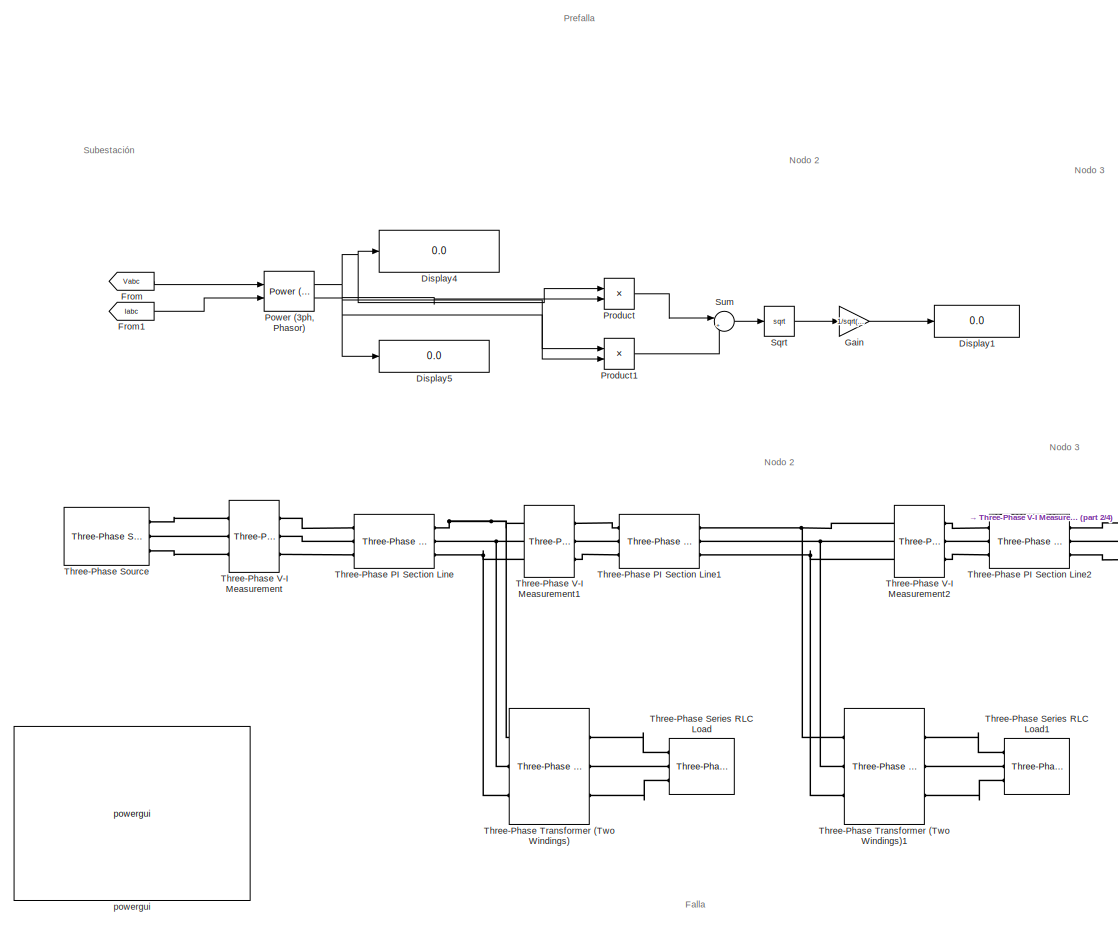
[diagram: root canvas - part 1/4, top left region]
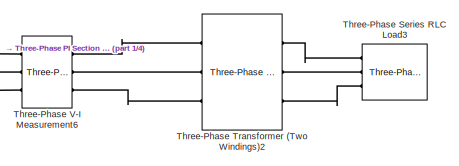
[diagram: root canvas - part 2/4, top right region]
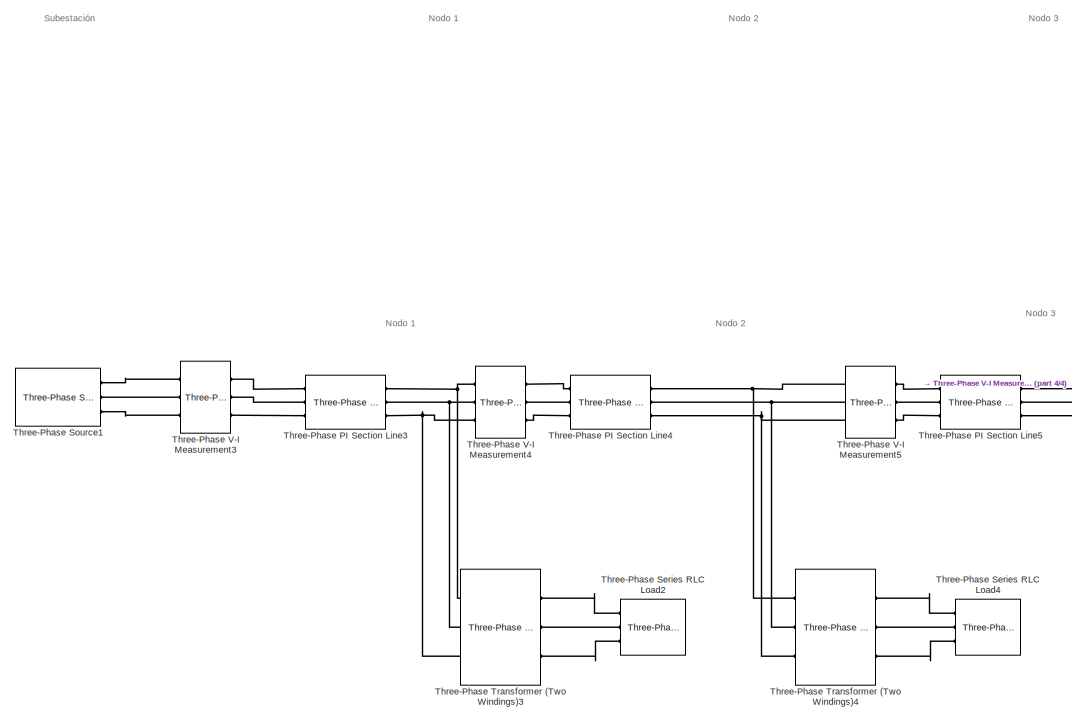
[diagram: root canvas - part 3/4, bottom left region]
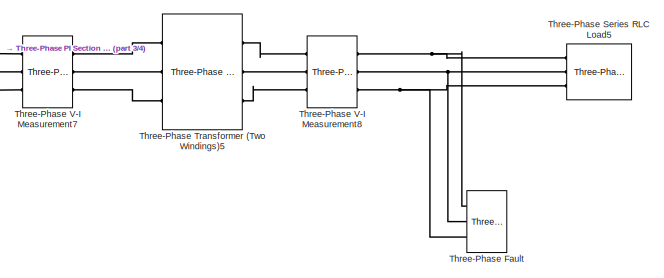
[diagram: root canvas - part 4/4, bottom right region]
MODEL slx_06a9c17df3db
KIND model
CONFIG AbsTol = auto
CONFIG FixedStep = auto
CONFIG MaxStep = auto
CONFIG MinStep = auto
CONFIG RelTol = 1e-3
CONFIG SampleTimeConstraint = Unconstrained
CONFIG Solver = ode45
CONFIG SolverMode = Auto
CONFIG SolverName = ode45
CONFIG StartTime = 0.0
CONFIG StopTime = 0.32
BLOCK [Display] Display1
  Ports = [1]
BLOCK [Display] Display4
  Decimation = 1
  Ports = [1]
BLOCK [Display] Display5
  Decimation = 1
  Ports = [1]
BLOCK [From] From
  GotoTag = Vabc
  TagVisibility = global
BLOCK [From] From1
  GotoTag = Iabc
  TagVisibility = global
BLOCK [Gain] Gain
  Gain = 1/sqrt(3)
  OutDataTypeStr = Inherit: Inherit via internal rule
  ParamDataTypeStr = Inherit: Inherit via internal rule
  SaturateOnIntegerOverflow = off
BLOCK [Reference] Power (3ph, Phasor)  REF=powerlib_meascontrol/Measurements/Power
(3ph, Phasor)
  Ports = [2, 2]
  SourceBlock = powerlib_meascontrol/Measurements/Power\n(3ph, Phasor)
  SourceType = Power (3ph, Phasor)
BLOCK [Product] Product
  InputSameDT = off
  OutDataTypeStr = Inherit: Inherit via internal rule
  Ports = [2, 1]
  RndMeth = Floor
  SaturateOnIntegerOverflow = off
BLOCK [Product] Product1
  InputSameDT = off
  OutDataTypeStr = Inherit: Inherit via internal rule
  Ports = [2, 1]
  RndMeth = Floor
  SaturateOnIntegerOverflow = off
BLOCK [Sqrt] Sqrt
BLOCK [Sum] Sum
  IconShape = round
  InputSameDT = off
  Inputs = |++
  OutDataTypeStr = Inherit: Inherit via internal rule
  Ports = [2, 1]
  SaturateOnIntegerOverflow = off
BLOCK [Reference] Three-Phase Fault  REF=powerlib/Elements/Three-Phase Fault
  External = off
  FaultA = on
  FaultB = off
  FaultC = off
  FaultResistance = 0.001
  GroundFault = on
  GroundResistance = 1
  InitialStates = 0
  Measurements = Fault currents
  Ports = [0, 0, 0, 0, 0, 3]
  SnubberCapacitance = inf
  SnubberResistance = 1e6
  SourceBlock = powerlib/Elements/Three-Phase Fault
  SourceType = Three-Phase Fault
  SwitchStatus = NaN
  SwitchTimes = [0.05  0.30]
BLOCK [Reference] Three-Phase PI Section Line  REF=powerlib/Elements/Three-Phase
PI Section Line
  AttributesFormatString = \n
  Capacitances = [12.74e-9 7.751e-9]
  Frequency = 60
  Inductances = [ 0.9337e-3  4.1264e-3]
  LConnTagsString = a|b|c
  Length = 2
  Ports = [0, 0, 0, 0, 0, 3, 3]
  RConnTagsString = A|B|C
  Resistances = [ 0.01273 0.3864]
  SourceBlock = powerlib/Elements/Three-Phase\nPI Section Line
  SourceType = Three-Phase PI Section Line
BLOCK [Reference] Three-Phase PI Section Line1  REF=powerlib/Elements/Three-Phase
PI Section Line
  AttributesFormatString = \n
  Capacitances = [12.74e-9 7.751e-9]
  Frequency = 60
  Inductances = [ 0.9337e-3  4.1264e-3]
  LConnTagsString = a|b|c
  Length = 1
  Ports = [0, 0, 0, 0, 0, 3, 3]
  RConnTagsString = A|B|C
  Resistances = [ 0.01273 0.3864]
  SourceBlock = powerlib/Elements/Three-Phase\nPI Section Line
  SourceType = Three-Phase PI Section Line
BLOCK [Reference] Three-Phase PI Section Line2  REF=powerlib/Elements/Three-Phase
PI Section Line
  AttributesFormatString = \n
  Capacitances = [12.74e-9 7.751e-9]
  Frequency = 60
  Inductances = [ 0.9337e-3  4.1264e-3]
  LConnTagsString = a|b|c
  Length = 1.5
  Ports = [0, 0, 0, 0, 0, 3, 3]
  RConnTagsString = A|B|C
  Resistances = [ 0.01273 0.3864]
  SourceBlock = powerlib/Elements/Three-Phase\nPI Section Line
  SourceType = Three-Phase PI Section Line
BLOCK [Reference] Three-Phase PI Section Line3  REF=powerlib/Elements/Three-Phase
PI Section Line
  AttributesFormatString = \n
  Capacitances = [12.74e-9 7.751e-9]
  Frequency = 60
  Inductances = [ 0.9337e-3  4.1264e-3]
  LConnTagsString = a|b|c
  Length = 2
  Ports = [0, 0, 0, 0, 0, 3, 3]
  RConnTagsString = A|B|C
  Resistances = [ 0.01273 0.3864]
  SourceBlock = powerlib/Elements/Three-Phase\nPI Section Line
  SourceType = Three-Phase PI Section Line
BLOCK [Reference] Three-Phase PI Section Line4  REF=powerlib/Elements/Three-Phase
PI Section Line
  AttributesFormatString = \n
  Capacitances = [12.74e-9 7.751e-9]
  Frequency = 60
  Inductances = [ 0.9337e-3  4.1264e-3]
  LConnTagsString = a|b|c
  Length = 1
  Ports = [0, 0, 0, 0, 0, 3, 3]
  RConnTagsString = A|B|C
  Resistances = [ 0.01273 0.3864]
  SourceBlock = powerlib/Elements/Three-Phase\nPI Section Line
  SourceType = Three-Phase PI Section Line
BLOCK [Reference] Three-Phase PI Section Line5  REF=powerlib/Elements/Three-Phase
PI Section Line
  AttributesFormatString = \n
  Capacitances = [12.74e-9 7.751e-9]
  Frequency = 60
  Inductances = [ 0.9337e-3  4.1264e-3]
  LConnTagsString = a|b|c
  Length = 1.5
  Ports = [0, 0, 0, 0, 0, 3, 3]
  RConnTagsString = A|B|C
  Resistances = [ 0.01273 0.3864]
  SourceBlock = powerlib/Elements/Three-Phase\nPI Section Line
  SourceType = Three-Phase PI Section Line
BLOCK [Reference] Three-Phase Series RLC Load  REF=powerlib/Elements/Three-Phase
Series RLC Load
  ActivePower = 10e3
  AttributesFormatString = \n
  CapacitivePower = 100
  Configuration = Y (grounded)
  InductivePower = 100
  LConnTagsString = A|B|C
  LoadType = constant Z
  Measurements = None
  NominalFrequency = 60
  NominalVoltage = 13800
  Ports = [0, 0, 0, 0, 0, 3]
  SourceBlock = powerlib/Elements/Three-Phase\nSeries RLC Load
  SourceType = Three-Phase Series RLC Load
BLOCK [Reference] Three-Phase Series RLC Load1  REF=powerlib/Elements/Three-Phase
Series RLC Load
  ActivePower = 10e3
  AttributesFormatString = \n
  CapacitivePower = 100
  Configuration = Y (grounded)
  InductivePower = 100
  LConnTagsString = A|B|C
  LoadType = constant Z
  Measurements = None
  NominalFrequency = 60
  NominalVoltage = 13800
  Ports = [0, 0, 0, 0, 0, 3]
  SourceBlock = powerlib/Elements/Three-Phase\nSeries RLC Load
  SourceType = Three-Phase Series RLC Load
BLOCK [Reference] Three-Phase Series RLC Load2  REF=powerlib/Elements/Three-Phase
Series RLC Load
  ActivePower = 10e3
  AttributesFormatString = \n
  CapacitivePower = 100
  Configuration = Y (grounded)
  InductivePower = 100
  LConnTagsString = A|B|C
  LoadType = constant Z
  Measurements = None
  NominalFrequency = 60
  NominalVoltage = 13800
  Ports = [0, 0, 0, 0, 0, 3]
  SourceBlock = powerlib/Elements/Three-Phase\nSeries RLC Load
  SourceType = Three-Phase Series RLC Load
BLOCK [Reference] Three-Phase Series RLC Load3  REF=powerlib/Elements/Three-Phase
Series RLC Load
  ActivePower = 10e3
  AttributesFormatString = \n
  CapacitivePower = 100
  Configuration = Y (grounded)
  InductivePower = 100
  LConnTagsString = A|B|C
  LoadType = constant Z
  Measurements = None
  NominalFrequency = 60
  NominalVoltage = 13800
  Ports = [0, 0, 0, 0, 0, 3]
  SourceBlock = powerlib/Elements/Three-Phase\nSeries RLC Load
  SourceType = Three-Phase Series RLC Load
BLOCK [Reference] Three-Phase Series RLC Load4  REF=powerlib/Elements/Three-Phase
Series RLC Load
  ActivePower = 10e3
  AttributesFormatString = \n
  CapacitivePower = 100
  Configuration = Y (grounded)
  InductivePower = 100
  LConnTagsString = A|B|C
  LoadType = constant Z
  Measurements = None
  NominalFrequency = 60
  NominalVoltage = 13800
  Ports = [0, 0, 0, 0, 0, 3]
  SourceBlock = powerlib/Elements/Three-Phase\nSeries RLC Load
  SourceType = Three-Phase Series RLC Load
BLOCK [Reference] Three-Phase Series RLC Load5  REF=powerlib/Elements/Three-Phase
Series RLC Load
  ActivePower = 10e3
  AttributesFormatString = \n
  CapacitivePower = 100
  Configuration = Y (grounded)
  InductivePower = 100
  LConnTagsString = A|B|C
  LoadType = constant Z
  Measurements = None
  NominalFrequency = 60
  NominalVoltage = 13800
  Ports = [0, 0, 0, 0, 0, 3]
  SourceBlock = powerlib/Elements/Three-Phase\nSeries RLC Load
  SourceType = Three-Phase Series RLC Load
BLOCK [Reference] Three-Phase Source  REF=powerlib/Electrical
Sources/Three-Phase Source
  BaseVoltage = 115e3
  BusType = swing
  Frequency = 60
  Inductance = 16.58e-3
  InternalConnection = Yg
  PhaseAngle = 0
  Ports = [0, 0, 0, 0, 0, 0, 3]
  Pref = 0
  Qmax = inf
  Qmin = -inf
  Qref = 0
  Resistance = 0.8929
  ShortCircuitLevel = 100e6
  SourceBlock = powerlib/Electrical\nSources/Three-Phase Source
  SourceType = Three-Phase Source
  SpecifyImpedance = on
  Voltage = 115e3
  XRratio = 7
BLOCK [Reference] Three-Phase Source1  REF=powerlib/Electrical
Sources/Three-Phase Source
  BaseVoltage = 115e3
  BusType = swing
  Frequency = 60
  Inductance = 16.58e-3
  InternalConnection = Yg
  PhaseAngle = 0
  Ports = [0, 0, 0, 0, 0, 0, 3]
  Pref = 0
  Qmax = inf
  Qmin = -inf
  Qref = 0
  Resistance = 0.8929
  ShortCircuitLevel = 100e6
  SourceBlock = powerlib/Electrical\nSources/Three-Phase Source
  SourceType = Three-Phase Source
  SpecifyImpedance = on
  Voltage = 115e3
  XRratio = 7
BLOCK [Reference] Three-Phase Transformer (Two Windings)  REF=powerlib/Elements/Three-Phase
Transformer
(Two Windings)
  BreakLoop = off
  CoreType = Three single-phase transformers
  DataFile = 'hysteresis'
  DataType = off
  Hysteresis = off
  InitialFluxes = [ 0.8 , -0.8 , 0.7 ]
  L0 = 0.5
  Lm = 500
  Measurements = None
  MoreParameters = off
  NominalPower = [ 250e6 , 60 ]
  Ports = [0, 0, 0, 0, 0, 3, 3]
  Rm = 500
  Saturation = [ 0,0 ; 0.0024,1.2 ; 1.0,1.52 ]
  SetInitialFlux = off
  SetSaturation = off
  SourceBlock = powerlib/Elements/Three-Phase\nTransformer\n(Two Windings)
  SourceType = Three-Phase Transformer (Two Windings)
  TransfoNumber = 1
  UNITS = pu
  Winding1 = [ 115e3 , 0.002 , 0.08 ]
  Winding1Connection = Yg
  Winding2 = [ 13.8e3 , 0.002 , 0.08 ]
  Winding2Connection = Yg
BLOCK [Reference] Three-Phase Transformer (Two Windings)1  REF=powerlib/Elements/Three-Phase
Transformer
(Two Windings)
  BreakLoop = off
  CoreType = Three single-phase transformers
  DataFile = 'hysteresis'
  DataType = off
  Hysteresis = off
  InitialFluxes = [ 0.8 , -0.8 , 0.7 ]
  L0 = 0.5
  Lm = 500
  Measurements = None
  MoreParameters = off
  NominalPower = [ 150e6 , 60 ]
  Ports = [0, 0, 0, 0, 0, 3, 3]
  Rm = 500
  Saturation = [ 0,0 ; 0.0024,1.2 ; 1.0,1.52 ]
  SetInitialFlux = off
  SetSaturation = off
  SourceBlock = powerlib/Elements/Three-Phase\nTransformer\n(Two Windings)
  SourceType = Three-Phase Transformer (Two Windings)
  TransfoNumber = 1
  UNITS = pu
  Winding1 = [ 115e3 , 0.002 , 0.08 ]
  Winding1Connection = Yg
  Winding2 = [ 13.8e3 , 0.002 , 0.08 ]
  Winding2Connection = Yg
BLOCK [Reference] Three-Phase Transformer (Two Windings)2  REF=powerlib/Elements/Three-Phase
Transformer
(Two Windings)
  BreakLoop = off
  CoreType = Three single-phase transformers
  DataFile = 'hysteresis'
  DataType = off
  Hysteresis = off
  InitialFluxes = [ 0.8 , -0.8 , 0.7 ]
  L0 = 0.5
  Lm = 500
  Measurements = None
  MoreParameters = off
  NominalPower = [ 150e6 , 60 ]
  Ports = [0, 0, 0, 0, 0, 3, 3]
  Rm = 500
  Saturation = [ 0,0 ; 0.0024,1.2 ; 1.0,1.52 ]
  SetInitialFlux = off
  SetSaturation = off
  SourceBlock = powerlib/Elements/Three-Phase\nTransformer\n(Two Windings)
  SourceType = Three-Phase Transformer (Two Windings)
  TransfoNumber = 1
  UNITS = pu
  Winding1 = [ 115e3 , 0.002 , 0.08 ]
  Winding1Connection = Yg
  Winding2 = [ 13.8e3 , 0.002 , 0.08 ]
  Winding2Connection = Yg
BLOCK [Reference] Three-Phase Transformer (Two Windings)3  REF=powerlib/Elements/Three-Phase
Transformer
(Two Windings)
  BreakLoop = off
  CoreType = Three single-phase transformers
  DataFile = 'hysteresis'
  DataType = off
  Hysteresis = off
  InitialFluxes = [ 0.8 , -0.8 , 0.7 ]
  L0 = 0.5
  Lm = 500
  Measurements = None
  MoreParameters = off
  NominalPower = [ 250e6 , 60 ]
  Ports = [0, 0, 0, 0, 0, 3, 3]
  Rm = 500
  Saturation = [ 0,0 ; 0.0024,1.2 ; 1.0,1.52 ]
  SetInitialFlux = off
  SetSaturation = off
  SourceBlock = powerlib/Elements/Three-Phase\nTransformer\n(Two Windings)
  SourceType = Three-Phase Transformer (Two Windings)
  TransfoNumber = 1
  UNITS = pu
  Winding1 = [ 115e3 , 0.002 , 0.08 ]
  Winding1Connection = Yg
  Winding2 = [ 13.8e3 , 0.002 , 0.08 ]
  Winding2Connection = Yg
BLOCK [Reference] Three-Phase Transformer (Two Windings)4  REF=powerlib/Elements/Three-Phase
Transformer
(Two Windings)
  BreakLoop = off
  CoreType = Three single-phase transformers
  DataFile = 'hysteresis'
  DataType = off
  Hysteresis = off
  InitialFluxes = [ 0.8 , -0.8 , 0.7 ]
  L0 = 0.5
  Lm = 500
  Measurements = None
  MoreParameters = off
  NominalPower = [ 150e6 , 60 ]
  Ports = [0, 0, 0, 0, 0, 3, 3]
  Rm = 500
  Saturation = [ 0,0 ; 0.0024,1.2 ; 1.0,1.52 ]
  SetInitialFlux = off
  SetSaturation = off
  SourceBlock = powerlib/Elements/Three-Phase\nTransformer\n(Two Windings)
  SourceType = Three-Phase Transformer (Two Windings)
  TransfoNumber = 1
  UNITS = pu
  Winding1 = [ 115e3 , 0.002 , 0.08 ]
  Winding1Connection = Yg
  Winding2 = [ 13.8e3 , 0.002 , 0.08 ]
  Winding2Connection = Yg
BLOCK [Reference] Three-Phase Transformer (Two Windings)5  REF=powerlib/Elements/Three-Phase
Transformer
(Two Windings)
  BreakLoop = off
  CoreType = Three single-phase transformers
  DataFile = 'hysteresis'
  DataType = off
  Hysteresis = off
  InitialFluxes = [ 0.8 , -0.8 , 0.7 ]
  L0 = 0.5
  Lm = 500
  Measurements = None
  MoreParameters = off
  NominalPower = [ 150e6 , 60 ]
  Ports = [0, 0, 0, 0, 0, 3, 3]
  Rm = 500
  Saturation = [ 0,0 ; 0.0024,1.2 ; 1.0,1.52 ]
  SetInitialFlux = off
  SetSaturation = off
  SourceBlock = powerlib/Elements/Three-Phase\nTransformer\n(Two Windings)
  SourceType = Three-Phase Transformer (Two Windings)
  TransfoNumber = 1
  UNITS = pu
  Winding1 = [ 115e3 , 0.002 , 0.08 ]
  Winding1Connection = Yg
  Winding2 = [ 13.8e3 , 0.002 , 0.08 ]
  Winding2Connection = Yg
BLOCK [Reference] Three-Phase V-I Measurement  REF=powerlib/Measurements/Three-Phase
V-I Measurement
  CurrentMeasurement = yes
  Ipu = off
  LabelI = Iabc
  LabelV = Vabc
  OutputType = Complex
  PSBequivalent = 0
  Pbase = 100e6
  PhasorSimulation = on
  Ports = [0, 0, 0, 0, 0, 3, 3]
  SetLabelI = on
  SetLabelV = on
  SourceBlock = powerlib/Measurements/Three-Phase\nV-I Measurement
  SourceType = Three-Phase VI Measurement
  Vbase = 500e3
  VoltageMeasurement = phase-to-phase
  Vpu = off
  VpuLL = off
BLOCK [Reference] Three-Phase V-I Measurement1  REF=powerlib/Measurements/Three-Phase
V-I Measurement
  CurrentMeasurement = yes
  Ipu = off
  LabelI = Iabc1
  LabelV = Vabc1
  OutputType = Complex
  PSBequivalent = 0
  Pbase = 100e6
  PhasorSimulation = on
  Ports = [0, 0, 0, 0, 0, 3, 3]
  SetLabelI = on
  SetLabelV = on
  SourceBlock = powerlib/Measurements/Three-Phase\nV-I Measurement
  SourceType = Three-Phase VI Measurement
  Vbase = 500e3
  VoltageMeasurement = phase-to-phase
  Vpu = off
  VpuLL = off
BLOCK [Reference] Three-Phase V-I Measurement2  REF=powerlib/Measurements/Three-Phase
V-I Measurement
  CurrentMeasurement = yes
  Ipu = off
  LabelI = Iabc2
  LabelV = Vabc2
  OutputType = Complex
  PSBequivalent = 0
  Pbase = 100e6
  PhasorSimulation = on
  Ports = [0, 0, 0, 0, 0, 3, 3]
  SetLabelI = on
  SetLabelV = on
  SourceBlock = powerlib/Measurements/Three-Phase\nV-I Measurement
  SourceType = Three-Phase VI Measurement
  Vbase = 500e3
  VoltageMeasurement = phase-to-phase
  Vpu = off
  VpuLL = off
BLOCK [Reference] Three-Phase V-I Measurement3  REF=powerlib/Measurements/Three-Phase
V-I Measurement
  CurrentMeasurement = yes
  Ipu = off
  LabelI = Iabcs
  LabelV = Vabcs
  OutputType = Complex
  PSBequivalent = 0
  Pbase = 100e6
  PhasorSimulation = on
  Ports = [0, 0, 0, 0, 0, 3, 3]
  SetLabelI = on
  SetLabelV = on
  SourceBlock = powerlib/Measurements/Three-Phase\nV-I Measurement
  SourceType = Three-Phase VI Measurement
  Vbase = 500e3
  VoltageMeasurement = phase-to-phase
  Vpu = off
  VpuLL = off
BLOCK [Reference] Three-Phase V-I Measurement4  REF=powerlib/Measurements/Three-Phase
V-I Measurement
  CurrentMeasurement = yes
  Ipu = off
  LabelI = Iabcn1
  LabelV = Vabcn1
  OutputType = Complex
  PSBequivalent = 0
  Pbase = 100e6
  PhasorSimulation = on
  Ports = [0, 0, 0, 0, 0, 3, 3]
  SetLabelI = on
  SetLabelV = on
  SourceBlock = powerlib/Measurements/Three-Phase\nV-I Measurement
  SourceType = Three-Phase VI Measurement
  Vbase = 500e3
  VoltageMeasurement = phase-to-phase
  Vpu = off
  VpuLL = off
BLOCK [Reference] Three-Phase V-I Measurement5  REF=powerlib/Measurements/Three-Phase
V-I Measurement
  CurrentMeasurement = yes
  Ipu = off
  LabelI = Iabcn2
  LabelV = Vabcn2
  OutputType = Complex
  PSBequivalent = 0
  Pbase = 100e6
  PhasorSimulation = on
  Ports = [0, 0, 0, 0, 0, 3, 3]
  SetLabelI = on
  SetLabelV = on
  SourceBlock = powerlib/Measurements/Three-Phase\nV-I Measurement
  SourceType = Three-Phase VI Measurement
  Vbase = 500e3
  VoltageMeasurement = phase-to-phase
  Vpu = off
  VpuLL = off
BLOCK [Reference] Three-Phase V-I Measurement6  REF=powerlib/Measurements/Three-Phase
V-I Measurement
  CurrentMeasurement = yes
  Ipu = off
  LabelI = Iabc3
  LabelV = Vabc3
  OutputType = Complex
  PSBequivalent = 0
  Pbase = 100e6
  PhasorSimulation = on
  Ports = [0, 0, 0, 0, 0, 3, 3]
  SetLabelI = on
  SetLabelV = on
  SourceBlock = powerlib/Measurements/Three-Phase\nV-I Measurement
  SourceType = Three-Phase VI Measurement
  Vbase = 500e3
  VoltageMeasurement = phase-to-phase
  Vpu = off
  VpuLL = off
BLOCK [Reference] Three-Phase V-I Measurement7  REF=powerlib/Measurements/Three-Phase
V-I Measurement
  CurrentMeasurement = yes
  Ipu = off
  LabelI = Iabcn3
  LabelV = Vabcn3
  OutputType = Complex
  PSBequivalent = 0
  Pbase = 100e6
  PhasorSimulation = on
  Ports = [0, 0, 0, 0, 0, 3, 3]
  SetLabelI = on
  SetLabelV = on
  SourceBlock = powerlib/Measurements/Three-Phase\nV-I Measurement
  SourceType = Three-Phase VI Measurement
  Vbase = 500e3
  VoltageMeasurement = phase-to-phase
  Vpu = off
  VpuLL = off
BLOCK [Reference] Three-Phase V-I Measurement8  REF=powerlib/Measurements/Three-Phase
V-I Measurement
  CurrentMeasurement = yes
  Ipu = off
  LabelI = Iabcn33
  LabelV = Vabcn33
  OutputType = Complex
  PSBequivalent = 0
  Pbase = 100e6
  PhasorSimulation = on
  Ports = [0, 0, 0, 0, 0, 3, 3]
  SetLabelI = on
  SetLabelV = on
  SourceBlock = powerlib/Measurements/Three-Phase\nV-I Measurement
  SourceType = Three-Phase VI Measurement
  Vbase = 500e3
  VoltageMeasurement = phase-to-phase
  Vpu = off
  VpuLL = off
BLOCK [Reference] powergui  REF=powerlib/powergui
  DisableRonSwitches = off
  DisableSnubberDevices = off
  DisableVfSwitches = off
  DisplayEquations = off
  DisplayStyle = 1
  EnableUseOfTLC = off
  ErrMax = 1e-4
  Frange = [0:2:500]
  FreqAxis = off
  FunctionMessages = off
  HookPort = off
  Interpol = off
  Iterations = 50
  MaxFrequency = 1000
  Pbase = 100e6
  Ports = []
  Priority = 1
  ResistiveCurrentMeasurement = off
  RestoreLinks = warning
  RmsSteady = 1
  SPID = off
  SampleTime = 5.208333e-4
  ShowGrid = off
  SolverType = Tustin
  SourceBlock = powerlib/powergui
  SourceType = PSB option menu block
  StartTime = 0.0
  SwTol = 0
  Ts = 0
  UnitsV = kV
  UnitsW = MW
  UserDataPersistent = on
  Xlog = on
  Ylog = off
  ZoomFFT = off
  buscounter = 0
  cycles = 1
  display = off
  echomessages = off
  frequency = 60
  frequencyindice = 60
  frequencyindicesteady = 1
  fundamental = 60
  methode = off
  save = off
  structure = 0
  variable = ZData
  x0status = blocks
ANNOTATION (root): Nodo 1
ANNOTATION (root): Nodo 2
ANNOTATION (root): Nodo 3
ANNOTATION (root): Subestación
ANNOTATION (root): Falla
ANNOTATION (root): Prefalla
LINE From1:1 -> Power (3ph, Phasor):2
LINE From:1 -> Power (3ph, Phasor):1
LINE Gain:1 -> Display1:1
NET Power (3ph, Phasor):1 -> Display4:1, Product:1, Product:2
NET Power (3ph, Phasor):2 -> Display5:1, Product1:1, Product1:2
LINE Product1:1 -> Sum:2
LINE Product:1 -> Sum:1
LINE Sqrt:1 -> Gain:1
LINE Sum:1 -> Sqrt:1
PNET net1: Three-Phase Fault:LConn1 -- Three-Phase Series RLC Load5:LConn1 -- Three-Phase V-I Measurement8:RConn1
PNET net2: Three-Phase Fault:LConn2 -- Three-Phase Series RLC Load5:LConn2 -- Three-Phase V-I Measurement8:RConn2
PNET net3: Three-Phase Fault:LConn3 -- Three-Phase Series RLC Load5:LConn3 -- Three-Phase V-I Measurement8:RConn3
PLINE Three-Phase PI Section Line1:LConn1 -- Three-Phase V-I Measurement1:RConn1
PLINE Three-Phase PI Section Line1:LConn2 -- Three-Phase V-I Measurement1:RConn2
PLINE Three-Phase PI Section Line1:LConn3 -- Three-Phase V-I Measurement1:RConn3
PNET net4: Three-Phase PI Section Line1:RConn1 -- Three-Phase Transformer (Two Windings)1:LConn1 -- Three-Phase V-I Measurement2:LConn1
PNET net5: Three-Phase PI Section Line1:RConn2 -- Three-Phase Transformer (Two Windings)1:LConn2 -- Three-Phase V-I Measurement2:LConn2
PNET net6: Three-Phase PI Section Line1:RConn3 -- Three-Phase Transformer (Two Windings)1:LConn3 -- Three-Phase V-I Measurement2:LConn3
PLINE Three-Phase PI Section Line2:LConn1 -- Three-Phase V-I Measurement2:RConn1
PLINE Three-Phase PI Section Line2:LConn2 -- Three-Phase V-I Measurement2:RConn2
PLINE Three-Phase PI Section Line2:LConn3 -- Three-Phase V-I Measurement2:RConn3
PLINE Three-Phase PI Section Line2:RConn1 -- Three-Phase V-I Measurement6:LConn1
PLINE Three-Phase PI Section Line2:RConn2 -- Three-Phase V-I Measurement6:LConn2
PLINE Three-Phase PI Section Line2:RConn3 -- Three-Phase V-I Measurement6:LConn3
PLINE Three-Phase PI Section Line3:LConn1 -- Three-Phase V-I Measurement3:RConn1
PLINE Three-Phase PI Section Line3:LConn2 -- Three-Phase V-I Measurement3:RConn2
PLINE Three-Phase PI Section Line3:LConn3 -- Three-Phase V-I Measurement3:RConn3
PNET net7: Three-Phase PI Section Line3:RConn1 -- Three-Phase Transformer (Two Windings)3:LConn1 -- Three-Phase V-I Measurement4:LConn1
PNET net8: Three-Phase PI Section Line3:RConn2 -- Three-Phase Transformer (Two Windings)3:LConn2 -- Three-Phase V-I Measurement4:LConn2
PNET net9: Three-Phase PI Section Line3:RConn3 -- Three-Phase Transformer (Two Windings)3:LConn3 -- Three-Phase V-I Measurement4:LConn3
PLINE Three-Phase PI Section Line4:LConn1 -- Three-Phase V-I Measurement4:RConn1
PLINE Three-Phase PI Section Line4:LConn2 -- Three-Phase V-I Measurement4:RConn2
PLINE Three-Phase PI Section Line4:LConn3 -- Three-Phase V-I Measurement4:RConn3
PNET net10: Three-Phase PI Section Line4:RConn1 -- Three-Phase Transformer (Two Windings)4:LConn1 -- Three-Phase V-I Measurement5:LConn1
PNET net11: Three-Phase PI Section Line4:RConn2 -- Three-Phase Transformer (Two Windings)4:LConn2 -- Three-Phase V-I Measurement5:LConn2
PNET net12: Three-Phase PI Section Line4:RConn3 -- Three-Phase Transformer (Two Windings)4:LConn3 -- Three-Phase V-I Measurement5:LConn3
PLINE Three-Phase PI Section Line5:LConn1 -- Three-Phase V-I Measurement5:RConn1
PLINE Three-Phase PI Section Line5:LConn2 -- Three-Phase V-I Measurement5:RConn2
PLINE Three-Phase PI Section Line5:LConn3 -- Three-Phase V-I Measurement5:RConn3
PLINE Three-Phase PI Section Line5:RConn1 -- Three-Phase V-I Measurement7:LConn1
PLINE Three-Phase PI Section Line5:RConn2 -- Three-Phase V-I Measurement7:LConn2
PLINE Three-Phase PI Section Line5:RConn3 -- Three-Phase V-I Measurement7:LConn3
PLINE Three-Phase PI Section Line:LConn1 -- Three-Phase V-I Measurement:RConn1
PLINE Three-Phase PI Section Line:LConn2 -- Three-Phase V-I Measurement:RConn2
PLINE Three-Phase PI Section Line:LConn3 -- Three-Phase V-I Measurement:RConn3
PNET net13: Three-Phase PI Section Line:RConn1 -- Three-Phase Transformer (Two Windings):LConn1 -- Three-Phase V-I Measurement1:LConn1
PNET net14: Three-Phase PI Section Line:RConn2 -- Three-Phase Transformer (Two Windings):LConn2 -- Three-Phase V-I Measurement1:LConn2
PNET net15: Three-Phase PI Section Line:RConn3 -- Three-Phase Transformer (Two Windings):LConn3 -- Three-Phase V-I Measurement1:LConn3
PLINE Three-Phase Series RLC Load1:LConn1 -- Three-Phase Transformer (Two Windings)1:RConn1
PLINE Three-Phase Series RLC Load1:LConn2 -- Three-Phase Transformer (Two Windings)1:RConn2
PLINE Three-Phase Series RLC Load1:LConn3 -- Three-Phase Transformer (Two Windings)1:RConn3
PLINE Three-Phase Series RLC Load2:LConn1 -- Three-Phase Transformer (Two Windings)3:RConn1
PLINE Three-Phase Series RLC Load2:LConn2 -- Three-Phase Transformer (Two Windings)3:RConn2
PLINE Three-Phase Series RLC Load2:LConn3 -- Three-Phase Transformer (Two Windings)3:RConn3
PLINE Three-Phase Series RLC Load3:LConn1 -- Three-Phase Transformer (Two Windings)2:RConn1
PLINE Three-Phase Series RLC Load3:LConn2 -- Three-Phase Transformer (Two Windings)2:RConn2
PLINE Three-Phase Series RLC Load3:LConn3 -- Three-Phase Transformer (Two Windings)2:RConn3
PLINE Three-Phase Series RLC Load4:LConn1 -- Three-Phase Transformer (Two Windings)4:RConn1
PLINE Three-Phase Series RLC Load4:LConn2 -- Three-Phase Transformer (Two Windings)4:RConn2
PLINE Three-Phase Series RLC Load4:LConn3 -- Three-Phase Transformer (Two Windings)4:RConn3
PLINE Three-Phase Series RLC Load:LConn1 -- Three-Phase Transformer (Two Windings):RConn1
PLINE Three-Phase Series RLC Load:LConn2 -- Three-Phase Transformer (Two Windings):RConn2
PLINE Three-Phase Series RLC Load:LConn3 -- Three-Phase Transformer (Two Windings):RConn3
PLINE Three-Phase Source1:RConn1 -- Three-Phase V-I Measurement3:LConn1
PLINE Three-Phase Source1:RConn2 -- Three-Phase V-I Measurement3:LConn2
PLINE Three-Phase Source1:RConn3 -- Three-Phase V-I Measurement3:LConn3
PLINE Three-Phase Source:RConn1 -- Three-Phase V-I Measurement:LConn1
PLINE Three-Phase Source:RConn2 -- Three-Phase V-I Measurement:LConn2
PLINE Three-Phase Source:RConn3 -- Three-Phase V-I Measurement:LConn3
PLINE Three-Phase Transformer (Two Windings)2:LConn1 -- Three-Phase V-I Measurement6:RConn1
PLINE Three-Phase Transformer (Two Windings)2:LConn2 -- Three-Phase V-I Measurement6:RConn2
PLINE Three-Phase Transformer (Two Windings)2:LConn3 -- Three-Phase V-I Measurement6:RConn3
PLINE Three-Phase Transformer (Two Windings)5:LConn1 -- Three-Phase V-I Measurement7:RConn1
PLINE Three-Phase Transformer (Two Windings)5:LConn2 -- Three-Phase V-I Measurement7:RConn2
PLINE Three-Phase Transformer (Two Windings)5:LConn3 -- Three-Phase V-I Measurement7:RConn3
PLINE Three-Phase Transformer (Two Windings)5:RConn1 -- Three-Phase V-I Measurement8:LConn1
PLINE Three-Phase Transformer (Two Windings)5:RConn2 -- Three-Phase V-I Measurement8:LConn2
PLINE Three-Phase Transformer (Two Windings)5:RConn3 -- Three-Phase V-I Measurement8:LConn3
note: NET lines group one-source signal fan-out (src -> all destinations, sorted); 1:1 wires keep LINE; PNET lines group multi-terminal physical nets as a canonical sorted terminal list (undirected conserving connections); 2-terminal nets keep the pairwise PLINE form
